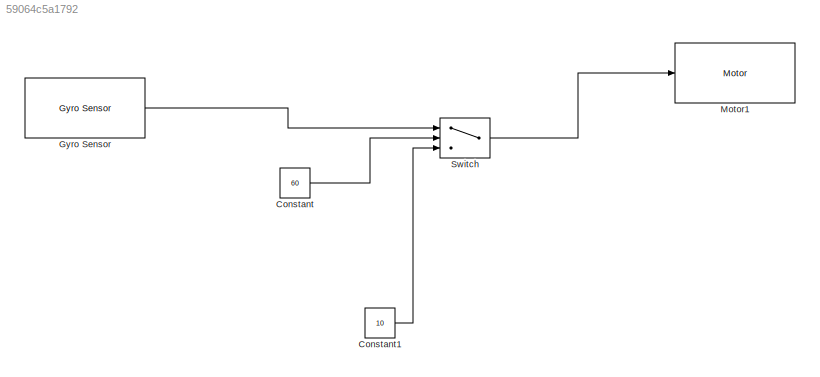
MODEL slx_59064c5a1792
KIND model
CONFIG AbsTol = auto
CONFIG EnableMultiTasking = on
CONFIG FixedStep = auto
CONFIG MaxStep = auto
CONFIG MinStep = auto
CONFIG RelTol = 1e-3
CONFIG SampleTimeConstraint = Unconstrained
CONFIG Solver = ode45
CONFIG SolverName = ode45
CONFIG StartTime = 0.0
CONFIG StopTime = 10.0
BLOCK [Constant] Constant
  Value = 60
BLOCK [Constant] Constant1
  Value = 10
BLOCK [Reference] Gyro Sensor  REF=legoev3lib/Gyro Sensor
  Ports = [0, 1]
  SourceBlock = legoev3lib/Gyro Sensor
  SourceType = LEGO MINDSTORMS EV3 Gyro Sensor
BLOCK [Reference] Motor1  REF=legoev3lib/Motor
  Ports = [1]
  SourceBlock = legoev3lib/Motor
  SourceType = LEGO MINDSTORMS EV3 Motor
BLOCK [Switch] Switch
  Criteria = u2 > Threshold
  InputSameDT = off
  SaturateOnIntegerOverflow = off
  Threshold = 200
LINE Constant1:1 -> Switch:3
LINE Constant:1 -> Switch:2
LINE Gyro Sensor:1 -> Switch:1
LINE Switch:1 -> Motor1:1
